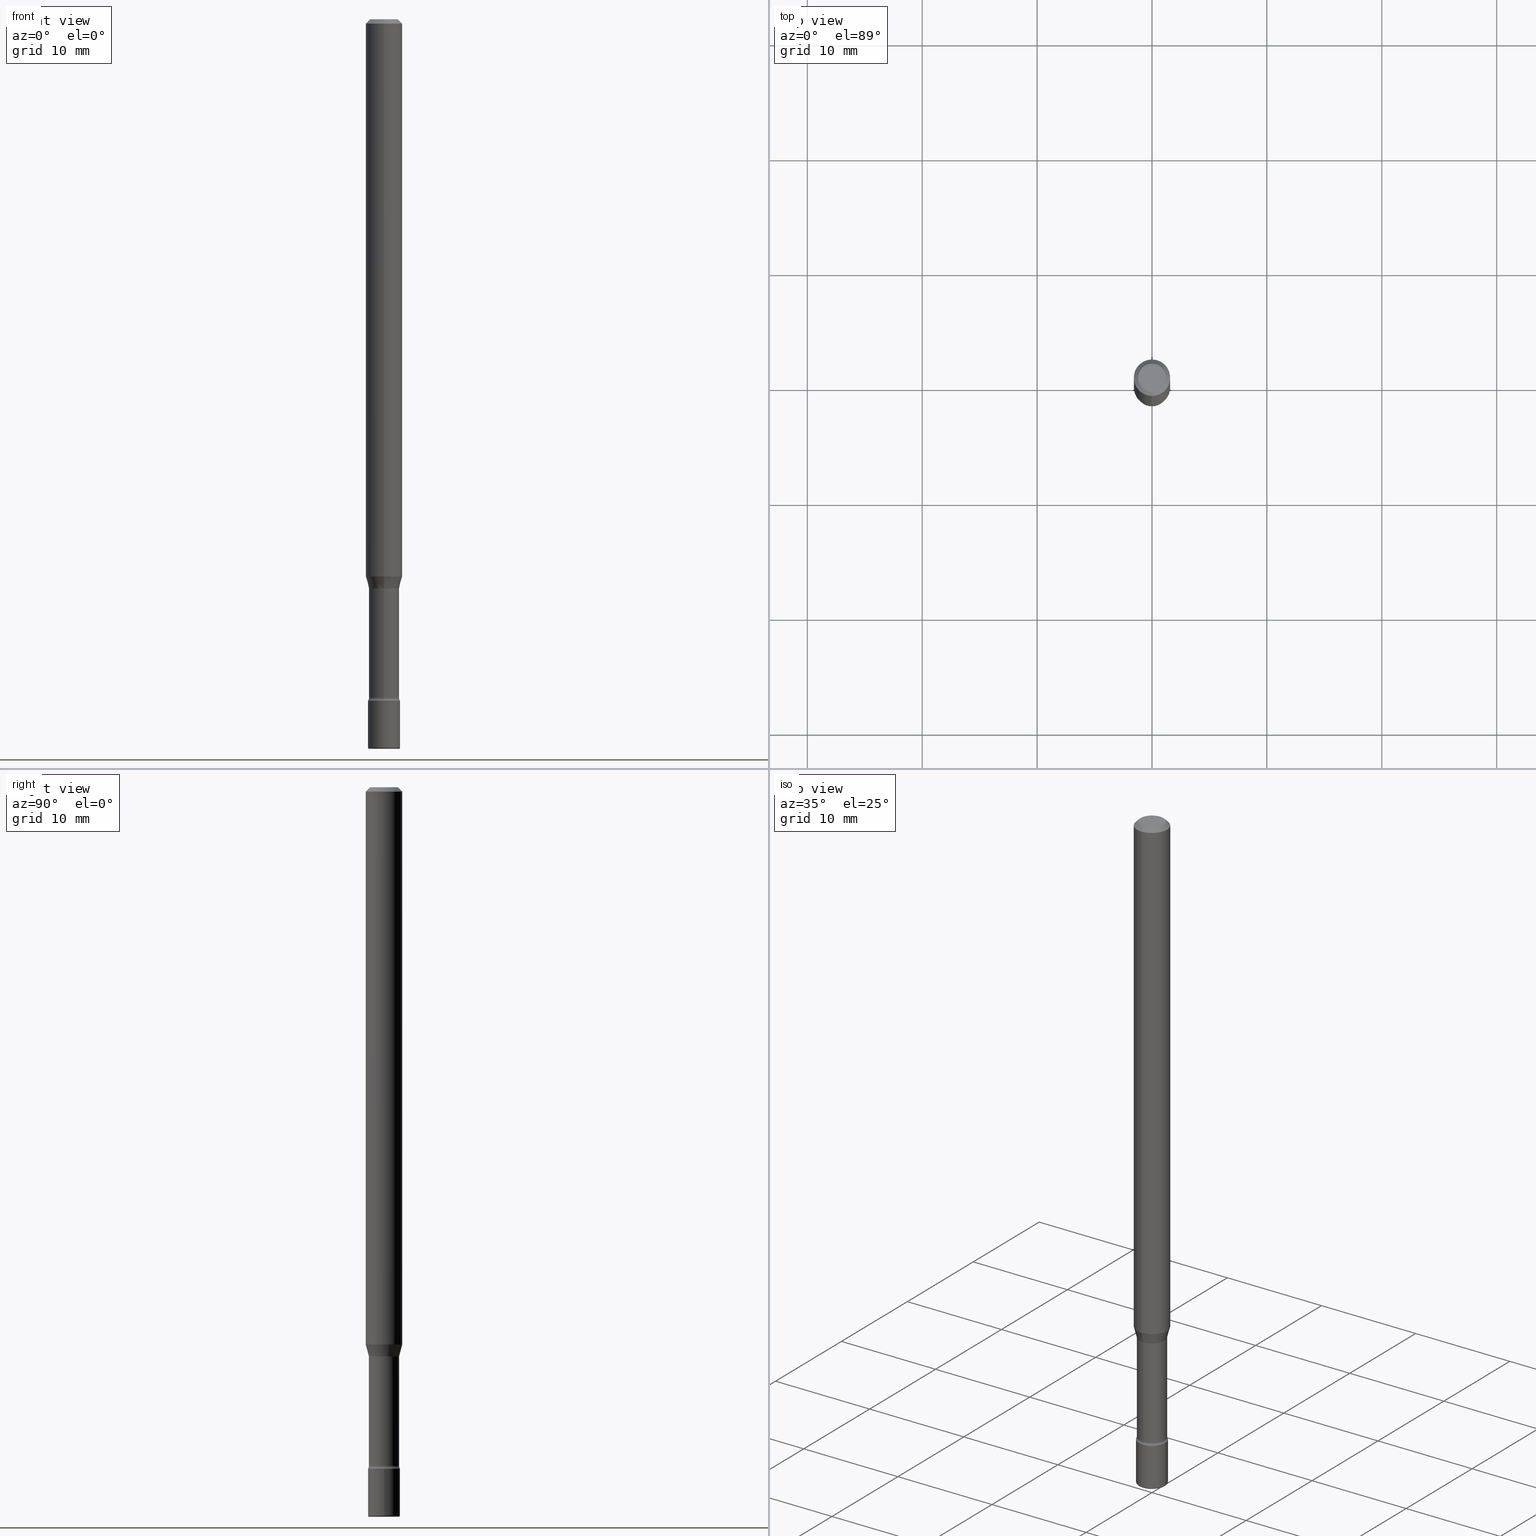
[diagram: canonical four-view strip — front | top / right | iso, engineering-drawing reading convention]
A machine part, canonical four-view strip (front | top / right | iso — engineering-drawing reading convention). The complete STEP part file that produces these views, byte-faithful:
ISO-10303-21;
HEADER;
FILE_DESCRIPTION (( 'STEP AP203' ),
    '1' );
FILE_NAME ('08866.STEP',
    '2024-03-06T20:06:53',
    ( '' ),
    ( '' ),
    'SwSTEP 2.0',
    'SolidWorks 2023',
    '' );
FILE_SCHEMA (( 'CONFIG_CONTROL_DESIGN' ));
ENDSEC;

DATA;
#1 = DIRECTION ( 'NONE',  ( 6.982962677686265922E-15, 1.000000000000000000, -3.483106191921935554E-15 ) ) ;
#2 = ORIENTED_EDGE ( 'NONE', *, *, #260, .F. ) ;
#3 = CLOSED_SHELL ( 'NONE', ( #21, #532, #512, #145, #171, #237, #322, #472, #391, #203, #119, #554, #291, #41 ) ) ;
#4 = CIRCLE ( 'NONE', #540, 0.05169999999999998902 ) ;
#5 = DIRECTION ( 'NONE',  ( -2.445442429917292137E-29, 3.491519111159942797E-15, 1.000000000000000000 ) ) ;
#6 = EDGE_CURVE ( 'NONE', #45, #112, #424, .T. ) ;
#7 = TOROIDAL_SURFACE ( 'NONE', #95, 0.05000000000000000278, 0.004999999999999767651 ) ;
#8 = LINE ( 'NONE', #243, #413 ) ;
#9 = LINE ( 'NONE', #197, #250 ) ;
#10 = CC_DESIGN_DATE_AND_TIME_ASSIGNMENT ( #128, #543, ( #382 ) ) ;
#11 = VERTEX_POINT ( 'NONE', #13 ) ;
#12 = APPLICATION_PROTOCOL_DEFINITION ( 'international standard', 'config_control_design', 1994, #491 ) ;
#13 = CARTESIAN_POINT ( 'NONE',  ( -4.364351673553447815E-16, -0.06250000000000664746, -1.909693851278255972 ) ) ;
#14 = EDGE_CURVE ( 'NONE', #562, #310, #395, .T. ) ;
#15 = APPLICATION_CONTEXT ( 'configuration controlled 3d designs of mechanical parts and assemblies' ) ;
#16 = AXIS2_PLACEMENT_3D ( 'NONE', #461, #452, #414 ) ;
#17 = ORIENTED_EDGE ( 'NONE', *, *, #432, .T. ) ;
#18 = ORIENTED_EDGE ( 'NONE', *, *, #343, .F. ) ;
#19 = AXIS2_PLACEMENT_3D ( 'NONE', #20, #110, #196 ) ;
#20 = CARTESIAN_POINT ( 'NONE',  ( 5.687214798230907854E-29, -8.119835463774270932E-15, -2.325613307291702903 ) ) ;
#21 = ADVANCED_FACE ( 'NONE', ( #383 ), #542, .F. ) ;
#22 = VERTEX_POINT ( 'NONE', #458 ) ;
#23 = AXIS2_PLACEMENT_3D ( 'NONE', #267, #354, #224 ) ;
#24 = DIRECTION ( 'NONE',  ( 1.000000000000000000, -6.982962677686279332E-15, 0.000000000000000000 ) ) ;
#25 = TOROIDAL_SURFACE ( 'NONE', #231, 0.06670000000000005091, 0.01500000000000004975 ) ;
#26 = DIRECTION ( 'NONE',  ( -2.445442429917292137E-29, 3.491519111159942797E-15, 1.000000000000000000 ) ) ;
#27 = ORIENTED_EDGE ( 'NONE', *, *, #37, .T. ) ;
#28 = DIRECTION ( 'NONE',  ( 1.000000000000000000, -6.982962677686279332E-15, 0.000000000000000000 ) ) ;
#29 = EDGE_CURVE ( 'NONE', #335, #22, #230, .T. ) ;
#30 = DIRECTION ( 'NONE',  ( -6.982962677686265133E-15, -1.000000000000000000, 3.491519111159943192E-15 ) ) ;
#31 = DIRECTION ( 'NONE',  ( -2.445442429917292137E-29, 3.491519111159942797E-15, 1.000000000000000000 ) ) ;
#32 = ORIENTED_EDGE ( 'NONE', *, *, #432, .F. ) ;
#33 = DIRECTION ( 'NONE',  ( -6.982962677686266711E-15, -1.000000000000000000, 5.284038672464726492E-15 ) ) ;
#34 = DIRECTION ( 'NONE',  ( 1.000000000000000000, -6.982962677686262766E-15, 0.000000000000000000 ) ) ;
#35 = ORIENTED_EDGE ( 'NONE', *, *, #525, .F. ) ;
#36 = PERSON_AND_ORGANIZATION ( #340, #473 ) ;
#37 = EDGE_CURVE ( 'NONE', #294, #158, #160, .T. ) ;
#38 = DIRECTION ( 'NONE',  ( -6.982962677686266711E-15, -1.000000000000000000, 3.491481338843145583E-15 ) ) ;
#39 = DIRECTION ( 'NONE',  ( -2.445468806185136597E-29, 3.491481338843145583E-15, 1.000000000000000000 ) ) ;
#40 = ORIENTED_EDGE ( 'NONE', *, *, #343, .T. ) ;
#41 = ADVANCED_FACE ( 'NONE', ( #91 ), #302, .F. ) ;
#42 = APPROVAL_PERSON_ORGANIZATION ( #378, #279, #342 ) ;
#43 = FACE_OUTER_BOUND ( 'NONE', #445, .T. ) ;
#44 = FACE_OUTER_BOUND ( 'NONE', #238, .T. ) ;
#45 = VERTEX_POINT ( 'NONE', #329 ) ;
#46 = DIRECTION ( 'NONE',  ( 2.445442429917292137E-29, -3.491519111159942797E-15, -1.000000000000000000 ) ) ;
#47 = CARTESIAN_POINT ( 'NONE',  ( 4.670046372068011457E-29, -6.667732578202665138E-15, -1.909693851278256194 ) ) ;
#48 = ORIENTED_EDGE ( 'NONE', *, *, #390, .T. ) ;
#49 = CIRCLE ( 'NONE', #139, 0.05500000000000000028 ) ;
#50 = DIRECTION ( 'NONE',  ( 7.105427357601001859E-15, 1.000000000000000000, -3.491481338843145583E-15 ) ) ;
#51 = DIRECTION ( 'NONE',  ( -2.445468806185136597E-29, 3.491481338843145583E-15, 1.000000000000000000 ) ) ;
#52 = DIRECTION ( 'NONE',  ( -1.807323732225328562E-15, -0.2588190451025179639, 0.9659258262890690894 ) ) ;
#53 = EDGE_LOOP ( 'NONE', ( #508, #407, #490, #66 ) ) ;
#54 = CYLINDRICAL_SURFACE ( 'NONE', #249, 0.06250000000000000000 ) ;
#55 = AXIS2_PLACEMENT_3D ( 'NONE', #401, #362, #406 ) ;
#56 = MECHANICAL_CONTEXT ( 'NONE', #15, 'mechanical' ) ;
#57 = AXIS2_PLACEMENT_3D ( 'NONE', #131, #330, #256 ) ;
#58 = ADVANCED_FACE ( 'NONE', ( #43 ), #412, .T. ) ;
#59 = DIRECTION ( 'NONE',  ( 2.438088387897960049E-29, -3.491481338843145188E-15, -1.000000000000000000 ) ) ;
#60 =( GEOMETRIC_REPRESENTATION_CONTEXT ( 3 ) GLOBAL_UNCERTAINTY_ASSIGNED_CONTEXT ( ( #227 ) ) GLOBAL_UNIT_ASSIGNED_CONTEXT ( ( #356, #446, #149 ) ) REPRESENTATION_CONTEXT ( 'NONE', 'WORKASPACE' ) );
#61 = DIRECTION ( 'NONE',  ( 4.937700262164546464E-15, 0.7071067811865449082, -0.7071067811865501263 ) ) ;
#62 = ORIENTED_EDGE ( 'NONE', *, *, #260, .T. ) ;
#63 = FACE_OUTER_BOUND ( 'NONE', #220, .T. ) ;
#64 = DIRECTION ( 'NONE',  ( -6.982962677686265922E-15, -1.000000000000000000, 3.491519111159943586E-15 ) ) ;
#65 = ADVANCED_FACE ( 'NONE', ( #492 ), #7, .T. ) ;
#66 = ORIENTED_EDGE ( 'NONE', *, *, #29, .F. ) ;
#67 = APPLICATION_PROTOCOL_DEFINITION ( 'international standard', 'config_control_design', 1994, #15 ) ;
#68 = AXIS2_PLACEMENT_3D ( 'NONE', #533, #155, #400 ) ;
#69 = CARTESIAN_POINT ( 'NONE',  ( -1.169113584055446105E-44, 1.669184350826100908E-30, 4.780733988912460139E-16 ) ) ;
#70 = AXIS2_PLACEMENT_3D ( 'NONE', #111, #236, #523 ) ;
#71 = ORIENTED_EDGE ( 'NONE', *, *, #84, .F. ) ;
#72 = CC_DESIGN_APPROVAL ( #482, ( #488 ) ) ;
#73 = CYLINDRICAL_SURFACE ( 'NONE', #530, 0.05169999999999998902 ) ;
#74 = COORDINATED_UNIVERSAL_TIME_OFFSET ( 5, 0, .BEHIND. ) ;
#75 = CARTESIAN_POINT ( 'NONE',  ( 6.622805039559550466E-46, -9.459420831309330133E-32, -2.708739301209159367E-17 ) ) ;
#76 = DIRECTION ( 'NONE',  ( -2.445442429917292137E-29, 3.491519111159942797E-15, 1.000000000000000000 ) ) ;
#77 = ORIENTED_EDGE ( 'NONE', *, *, #409, .F. ) ;
#78 = CONICAL_SURFACE ( 'NONE', #102, 0.06250000000000000000, 0.7853981633974480570 ) ;
#79 = CARTESIAN_POINT ( 'NONE',  ( -3.645882506857789159E-16, -0.05221111260567078832, -1.948092501787272779 ) ) ;
#80 = ORIENTED_EDGE ( 'NONE', *, *, #314, .F. ) ;
#81 = COORDINATED_UNIVERSAL_TIME_OFFSET ( 5, 0, .BEHIND. ) ;
#82 = CARTESIAN_POINT ( 'NONE',  ( 5.710108073856877243E-29, -8.152697124558466516E-15, -2.334999999999999964 ) ) ;
#83 = DIRECTION ( 'NONE',  ( -6.982962677686265922E-15, -1.000000000000000000, 3.491519111159943586E-15 ) ) ;
#84 = EDGE_CURVE ( 'NONE', #134, #11, #367, .T. ) ;
#85 = ORIENTED_EDGE ( 'NONE', *, *, #316, .T. ) ;
#86 = FACE_OUTER_BOUND ( 'NONE', #484, .T. ) ;
#87 = DIRECTION ( 'NONE',  ( 2.445442429917292137E-29, -3.491519111159942797E-15, -1.000000000000000000 ) ) ;
#88 = EDGE_CURVE ( 'NONE', #341, #562, #350, .T. ) ;
#89 = ORIENTED_EDGE ( 'NONE', *, *, #485, .T. ) ;
#90 = CARTESIAN_POINT ( 'NONE',  ( -0.05500000000000000028, 3.907985046680551042E-16, -2.705414299640198362E-30 ) ) ;
#91 = FACE_OUTER_BOUND ( 'NONE', #499, .T. ) ;
#92 = LINE ( 'NONE', #221, #556 ) ;
#93 = AXIS2_PLACEMENT_3D ( 'NONE', #505, #448, #457 ) ;
#94 = VERTEX_POINT ( 'NONE', #389 ) ;
#95 = AXIS2_PLACEMENT_3D ( 'NONE', #106, #51, #226 ) ;
#96 = ORIENTED_EDGE ( 'NONE', *, *, #371, .F. ) ;
#97 = CARTESIAN_POINT ( 'NONE',  ( 3.907985046681124445E-16, 0.05499999999999189565, -2.335000000000000409 ) ) ;
#98 = DIRECTION ( 'NONE',  ( -2.445468806185136597E-29, 3.491481338843145583E-15, 1.000000000000000000 ) ) ;
#99 = ORIENTED_EDGE ( 'NONE', *, *, #6, .T. ) ;
#100 = EDGE_CURVE ( 'NONE', #112, #45, #465, .T. ) ;
#101 = DIRECTION ( 'NONE',  ( -6.982962677686265922E-15, -1.000000000000000000, 4.370956789862821150E-15 ) ) ;
#102 = AXIS2_PLACEMENT_3D ( 'NONE', #552, #87, #212 ) ;
#103 = DIRECTION ( 'NONE',  ( -2.445468806185136877E-29, 3.491481338843145188E-15, 1.000000000000000000 ) ) ;
#104 = CARTESIAN_POINT ( 'NONE',  ( -1.169113584055446105E-44, 1.669184350826100908E-30, 4.780733988912460139E-16 ) ) ;
#105 = FACE_OUTER_BOUND ( 'NONE', #140, .T. ) ;
#106 = CARTESIAN_POINT ( 'NONE',  ( 6.101444671431915719E-29, -8.711245940413648329E-15, -2.495000000000000107 ) ) ;
#107 = AXIS2_PLACEMENT_3D ( 'NONE', #157, #318, #486 ) ;
#108 = DIRECTION ( 'NONE',  ( -2.445442429917292137E-29, 3.491519111159943192E-15, 1.000000000000000000 ) ) ;
#109 = ORIENTED_EDGE ( 'NONE', *, *, #191, .F. ) ;
#110 = DIRECTION ( 'NONE',  ( -2.445442429917292137E-29, 3.491519111159942797E-15, 1.000000000000000000 ) ) ;
#111 = CARTESIAN_POINT ( 'NONE',  ( 5.710169662442294357E-29, -8.152608926198745099E-15, -2.334999999999999964 ) ) ;
#112 = VERTEX_POINT ( 'NONE', #429 ) ;
#113 = DIRECTION ( 'NONE',  ( -6.982962677686266711E-15, -1.000000000000000000, 3.491519111159944375E-15 ) ) ;
#114 = CONICAL_SURFACE ( 'NONE', #437, 0.06250000000000000000, 0.7853981633974480570 ) ;
#115 = VECTOR ( 'NONE', #430, 39.37007874015748143 ) ;
#116 = LOCAL_TIME ( 15, 6, 53.00000000000000000, #504 ) ;
#117 = ORIENTED_EDGE ( 'NONE', *, *, #442, .T. ) ;
#118 = PERSON_AND_ORGANIZATION ( #340, #473 ) ;
#119 = ADVANCED_FACE ( 'NONE', ( #184 ), #144, .F. ) ;
#120 = APPROVAL_DATE_TIME ( #178, #482 ) ;
#121 = DIRECTION ( 'NONE',  ( -6.982962677686265133E-15, -1.000000000000000000, 3.491519111159942797E-15 ) ) ;
#122 = LINE ( 'NONE', #374, #439 ) ;
#123 = EDGE_LOOP ( 'NONE', ( #449, #513, #77, #166 ) ) ;
#124 = EDGE_CURVE ( 'NONE', #156, #341, #519, .T. ) ;
#125 = AXIS2_PLACEMENT_3D ( 'NONE', #501, #248, #130 ) ;
#126 = CYLINDRICAL_SURFACE ( 'NONE', #16, 0.05500000000000000028 ) ;
#127 = ORIENTED_EDGE ( 'NONE', *, *, #316, .F. ) ;
#128 = DATE_AND_TIME ( #408, #141 ) ;
#129 = EDGE_CURVE ( 'NONE', #422, #11, #518, .T. ) ;
#130 = DIRECTION ( 'NONE',  ( -6.982962677686268288E-15, -1.000000000000000000, 0.000000000000000000 ) ) ;
#131 = CARTESIAN_POINT ( 'NONE',  ( 0.000000000000000000, 0.000000000000000000, 0.000000000000000000 ) ) ;
#132 = EDGE_LOOP ( 'NONE', ( #109, #80, #404, #27 ) ) ;
#133 = LINE ( 'NONE', #466, #218 ) ;
#134 = VERTEX_POINT ( 'NONE', #135 ) ;
#135 = CARTESIAN_POINT ( 'NONE',  ( 4.440892098501093562E-16, 0.06249999999999334560, -1.909693851278256416 ) ) ;
#136 = AXIS2_PLACEMENT_3D ( 'NONE', #427, #175, #255 ) ;
#137 = DIRECTION ( 'NONE',  ( -2.445442429917292137E-29, 3.491519111159943192E-15, 1.000000000000000000 ) ) ;
#138 = MANIFOLD_SOLID_BREP ( 'Body-Move/Copy2[1]', #306 ) ;
#139 = AXIS2_PLACEMENT_3D ( 'NONE', #174, #296, #28 ) ;
#140 = EDGE_LOOP ( 'NONE', ( #388, #566 ) ) ;
#141 = LOCAL_TIME ( 15, 6, 53.00000000000000000, #558 ) ;
#142 = DIRECTION ( 'NONE',  ( -2.445442429917292137E-29, 3.491519111159942797E-15, 1.000000000000000000 ) ) ;
#143 = CC_DESIGN_PERSON_AND_ORGANIZATION_ASSIGNMENT ( #235, #399, ( #423 ) ) ;
#144 = PLANE ( 'NONE',  #311 ) ;
#145 = ADVANCED_FACE ( 'NONE', ( #392 ), #114, .T. ) ;
#146 = AXIS2_PLACEMENT_3D ( 'NONE', #82, #76, #164 ) ;
#147 = PRODUCT_RELATED_PRODUCT_CATEGORY ( 'detail', '', ( #423 ) ) ;
#148 = DIRECTION ( 'NONE',  ( -2.445442429917292137E-29, 3.491519111159942797E-15, 1.000000000000000000 ) ) ;
#149 =( NAMED_UNIT ( * ) SI_UNIT ( $, .STERADIAN. ) SOLID_ANGLE_UNIT ( ) );
#150 = CARTESIAN_POINT ( 'NONE',  ( 6.101444671431915719E-29, -8.711245940413648329E-15, -2.495000000000000107 ) ) ;
#151 = CARTESIAN_POINT ( 'NONE',  ( 5.710169662442294357E-29, -8.152608926198745099E-15, -2.334999999999999964 ) ) ;
#152 = AXIS2_PLACEMENT_3D ( 'NONE', #209, #180, #292 ) ;
#153 = DIRECTION ( 'NONE',  ( -2.445468806185136597E-29, 3.491481338843145583E-15, 1.000000000000000000 ) ) ;
#154 = CARTESIAN_POINT ( 'NONE',  ( 3.709822678791189595E-16, 0.05221111260565718115, -1.948092501787273445 ) ) ;
#155 = DIRECTION ( 'NONE',  ( -2.445442429917292137E-29, 3.491519111159942797E-15, 1.000000000000000000 ) ) ;
#156 = VERTEX_POINT ( 'NONE', #192 ) ;
#157 = CARTESIAN_POINT ( 'NONE',  ( 4.763948061274326162E-29, -6.801802200297648070E-15, -1.948092501787273001 ) ) ;
#158 = VERTEX_POINT ( 'NONE', #97 ) ;
#159 = DATE_AND_TIME ( #538, #426 ) ;
#160 = CIRCLE ( 'NONE', #146, 0.05500000000000000028 ) ;
#161 = VECTOR ( 'NONE', #103, 39.37007874015748143 ) ;
#162 = EDGE_CURVE ( 'NONE', #419, #368, #477, .T. ) ;
#163 = CARTESIAN_POINT ( 'NONE',  ( -0.05499999999999988926, -8.320447435745593669E-15, -2.495000000000000107 ) ) ;
#164 = DIRECTION ( 'NONE',  ( -6.982962677686266711E-15, -1.000000000000000000, 4.966996352116842287E-15 ) ) ;
#165 = CARTESIAN_POINT ( 'NONE',  ( -3.610191704363799049E-16, -0.05169999999999998902, 6.585849369382151154E-16 ) ) ;
#166 = ORIENTED_EDGE ( 'NONE', *, *, #418, .F. ) ;
#167 = PERSON_AND_ORGANIZATION_ROLE ( 'creator' ) ;
#168 = CARTESIAN_POINT ( 'NONE',  ( -4.657636106016261894E-16, -0.06670000000000680940, -1.951974787463810701 ) ) ;
#169 = VERTEX_POINT ( 'NONE', #567 ) ;
#170 = DATE_AND_TIME ( #253, #326 ) ;
#171 = ADVANCED_FACE ( 'NONE', ( #436 ), #54, .T. ) ;
#172 = PRODUCT_DEFINITION_SHAPE ( 'NONE', 'NONE',  #488 ) ;
#173 = CIRCLE ( 'NONE', #453, 0.05500000000000000028 ) ;
#174 = CARTESIAN_POINT ( 'NONE',  ( 6.101444671431915719E-29, -8.711245940413648329E-15, -2.495000000000000107 ) ) ;
#175 = DIRECTION ( 'NONE',  ( -2.445442429917292137E-29, 3.491519111159942797E-15, 1.000000000000000000 ) ) ;
#176 = DIRECTION ( 'NONE',  ( -6.982962677686267499E-15, -1.000000000000000000, 0.000000000000000000 ) ) ;
#177 = ORIENTED_EDGE ( 'NONE', *, *, #14, .F. ) ;
#178 = DATE_AND_TIME ( #210, #116 ) ;
#179 = EDGE_LOOP ( 'NONE', ( #2, #277, #415, #529 ) ) ;
#180 = DIRECTION ( 'NONE',  ( -2.445442429917292137E-29, 3.491519111159942797E-15, 1.000000000000000000 ) ) ;
#181 = DIRECTION ( 'NONE',  ( 1.000000000000000000, -6.982962677686075017E-15, 0.000000000000000000 ) ) ;
#182 = CYLINDRICAL_SURFACE ( 'NONE', #487, 0.06250000000000000000 ) ;
#183 = EDGE_LOOP ( 'NONE', ( #359, #462, #257, #456 ) ) ;
#184 = FACE_OUTER_BOUND ( 'NONE', #327, .T. ) ;
#185 = LINE ( 'NONE', #347, #115 ) ;
#186 = ORIENTED_EDGE ( 'NONE', *, *, #37, .F. ) ;
#187 = AXIS2_PLACEMENT_3D ( 'NONE', #357, #475, #438 ) ;
#188 = ADVANCED_FACE ( 'NONE', ( #244 ), #483, .T. ) ;
#189 = ORIENTED_EDGE ( 'NONE', *, *, #199, .F. ) ;
#190 = DIRECTION ( 'NONE',  ( -1.000000000000000000, 7.105427357601061812E-15, 0.000000000000000000 ) ) ;
#191 = EDGE_CURVE ( 'NONE', #169, #158, #353, .T. ) ;
#192 = CARTESIAN_POINT ( 'NONE',  ( -0.05000000000000000278, -8.346939707486704101E-15, -2.499999999999999556 ) ) ;
#193 = CIRCLE ( 'NONE', #262, 0.06250000000000000000 ) ;
#194 = AXIS2_PLACEMENT_3D ( 'NONE', #151, #153, #451 ) ;
#195 = DIRECTION ( 'NONE',  ( 7.105427357601001859E-15, 1.000000000000000000, 0.000000000000000000 ) ) ;
#196 = DIRECTION ( 'NONE',  ( -6.982962677686265133E-15, -1.000000000000000000, 3.491519111159942403E-15 ) ) ;
#197 = CARTESIAN_POINT ( 'NONE',  ( 3.673505943879716688E-16, 0.05169999999999998902, 2.975618608442770603E-16 ) ) ;
#198 = CARTESIAN_POINT ( 'NONE',  ( 3.840629472727447874E-16, 0.04750000000000000749, -1.929345507921888929E-16 ) ) ;
#199 = EDGE_CURVE ( 'NONE', #222, #307, #381, .T. ) ;
#200 = CIRCLE ( 'NONE', #361, 0.04750000000000000749 ) ;
#201 = DIRECTION ( 'NONE',  ( 2.445442429917291576E-29, -3.491519111159943192E-15, -1.000000000000000000 ) ) ;
#202 = FACE_OUTER_BOUND ( 'NONE', #183, .T. ) ;
#203 = ADVANCED_FACE ( 'NONE', ( #278 ), #522, .F. ) ;
#204 = DIRECTION ( 'NONE',  ( -2.445442429917292137E-29, 3.491519111159942797E-15, 1.000000000000000000 ) ) ;
#205 = ORIENTED_EDGE ( 'NONE', *, *, #129, .T. ) ;
#206 = DATE_AND_TIME ( #500, #370 ) ;
#207 = AXIS2_PLACEMENT_3D ( 'NONE', #496, #564, #545 ) ;
#208 = AXIS2_PLACEMENT_3D ( 'NONE', #297, #275, #324 ) ;
#209 = CARTESIAN_POINT ( 'NONE',  ( -1.169113584055446105E-44, 1.669184350826100908E-30, 4.780733988912460139E-16 ) ) ;
#210 = CALENDAR_DATE ( 2024, 6, 3 ) ;
#211 = CARTESIAN_POINT ( 'NONE',  ( 0.05000000000000000278, -9.060394074297961665E-15, -2.495000000000000107 ) ) ;
#212 = DIRECTION ( 'NONE',  ( 6.982962677686265922E-15, 1.000000000000000000, -3.483106191921935554E-15 ) ) ;
#213 = ORIENTED_EDGE ( 'NONE', *, *, #266, .F. ) ;
#214 = APPROVAL_DATE_TIME ( #170, #563 ) ;
#215 = FACE_OUTER_BOUND ( 'NONE', #460, .T. ) ;
#216 = ORIENTED_EDGE ( 'NONE', *, *, #517, .F. ) ;
#217 = PERSON_AND_ORGANIZATION_ROLE ( 'creator' ) ;
#218 = VECTOR ( 'NONE', #387, 39.37007874015748143 ) ;
#219 = FACE_OUTER_BOUND ( 'NONE', #325, .T. ) ;
#220 = EDGE_LOOP ( 'NONE', ( #284, #269, #441, #346 ) ) ;
#221 = CARTESIAN_POINT ( 'NONE',  ( 0.05500000000000000028, -3.840629472727446888E-16, 2.681897226687764826E-30 ) ) ;
#222 = VERTEX_POINT ( 'NONE', #198 ) ;
#223 = CC_DESIGN_PERSON_AND_ORGANIZATION_ASSIGNMENT ( #247, #167, ( #488 ) ) ;
#224 = DIRECTION ( 'NONE',  ( -6.982962677686266711E-15, -1.000000000000000000, 5.284038672464726492E-15 ) ) ;
#225 = CARTESIAN_POINT ( 'NONE',  ( -1.169113584055446105E-44, 1.669184350826100908E-30, 4.780733988912460139E-16 ) ) ;
#226 = DIRECTION ( 'NONE',  ( 1.000000000000000000, -6.982962677686273810E-15, 4.883557194083115143E-29 ) ) ;
#227 = UNCERTAINTY_MEASURE_WITH_UNIT (LENGTH_MEASURE( 1.000000000000000082E-05 ), #356, 'distance_accuracy_value', 'NONE');
#228 = ADVANCED_FACE ( 'NONE', ( #105 ), #396, .T. ) ;
#229 = DIRECTION ( 'NONE',  ( 1.000000000000000000, -7.105427357601001070E-15, 4.926315971119550959E-29 ) ) ;
#230 = CIRCLE ( 'NONE', #569, 0.004999999999999767651 ) ;
#231 = AXIS2_PLACEMENT_3D ( 'NONE', #459, #384, #506 ) ;
#232 = CARTESIAN_POINT ( 'NONE',  ( 0.000000000000000000, 0.000000000000000000, 0.000000000000000000 ) ) ;
#233 = AXIS2_PLACEMENT_3D ( 'NONE', #270, #50, #190 ) ;
#234 = AXIS2_PLACEMENT_3D ( 'NONE', #232, #476, #398 ) ;
#235 = PERSON_AND_ORGANIZATION ( #340, #473 ) ;
#236 = DIRECTION ( 'NONE',  ( -2.438088387897960049E-29, 3.491481338843145188E-15, 1.000000000000000000 ) ) ;
#237 = ADVANCED_FACE ( 'NONE', ( #202 ), #433, .T. ) ;
#238 = EDGE_LOOP ( 'NONE', ( #280, #447, #428, #177 ) ) ;
#239 = DIRECTION ( 'NONE',  ( 1.839019923739598738E-15, 0.2588190451025247363, 0.9659258262890673130 ) ) ;
#240 = CARTESIAN_POINT ( 'NONE',  ( 4.739320047520439837E-16, 0.06669999999999193241, -2.325613307291702903 ) ) ;
#241 = EDGE_CURVE ( 'NONE', #368, #419, #479, .T. ) ;
#242 = AXIS2_PLACEMENT_3D ( 'NONE', #305, #31, #299 ) ;
#243 = CARTESIAN_POINT ( 'NONE',  ( 4.364351673553919652E-16, 0.06249999999999995143, -0.01500000000000024578 ) ) ;
#244 = FACE_OUTER_BOUND ( 'NONE', #524, .T. ) ;
#245 = CC_DESIGN_PERSON_AND_ORGANIZATION_ASSIGNMENT ( #289, #450, ( #382 ) ) ;
#246 = ORIENTED_EDGE ( 'NONE', *, *, #6, .F. ) ;
#247 = PERSON_AND_ORGANIZATION ( #340, #473 ) ;
#248 = DIRECTION ( 'NONE',  ( -1.000000000000000000, 6.982962677686265922E-15, -4.883557194083112340E-29 ) ) ;
#249 = AXIS2_PLACEMENT_3D ( 'NONE', #69, #360, #64 ) ;
#250 = VECTOR ( 'NONE', #108, 39.37007874015748143 ) ;
#251 = DIRECTION ( 'NONE',  ( -2.445442429917292137E-29, 3.491519111159942797E-15, 1.000000000000000000 ) ) ;
#252 = ORIENTED_EDGE ( 'NONE', *, *, #124, .F. ) ;
#253 = CALENDAR_DATE ( 2024, 6, 3 ) ;
#254 = DIRECTION ( 'NONE',  ( -2.445442429917292137E-29, 3.491519111159942797E-15, 1.000000000000000000 ) ) ;
#255 = DIRECTION ( 'NONE',  ( -6.982962677686265133E-15, -1.000000000000000000, 3.491519111159943192E-15 ) ) ;
#256 = DIRECTION ( 'NONE',  ( 1.000000000000000000, -6.982962677686266711E-15, 4.876176775795935793E-29 ) ) ;
#257 = ORIENTED_EDGE ( 'NONE', *, *, #485, .F. ) ;
#258 = DIRECTION ( 'NONE',  ( -2.445442429917292137E-29, 3.491519111159943192E-15, 1.000000000000000000 ) ) ;
#259 = EDGE_LOOP ( 'NONE', ( #96, #40, #557, #431 ) ) ;
#260 = EDGE_CURVE ( 'NONE', #169, #288, #4, .T. ) ;
#261 = AXIS2_PLACEMENT_3D ( 'NONE', #240, #229, #195 ) ;
#262 = AXIS2_PLACEMENT_3D ( 'NONE', #47, #251, #455 ) ;
#263 = FACE_OUTER_BOUND ( 'NONE', #320, .T. ) ;
#264 = ORIENTED_EDGE ( 'NONE', *, *, #394, .T. ) ;
#265 = PRODUCT_DEFINITION_FORMATION_WITH_SPECIFIED_SOURCE ( 'ANY', '', #423, .NOT_KNOWN. ) ;
#266 = EDGE_CURVE ( 'NONE', #169, #368, #9, .T. ) ;
#267 = CARTESIAN_POINT ( 'NONE',  ( 4.773441967392791886E-29, -6.815357274932263739E-15, -1.951974787463810923 ) ) ;
#268 = CARTESIAN_POINT ( 'NONE',  ( 3.673505943880287133E-16, 0.05169999999999318890, -1.951974787463811367 ) ) ;
#269 = ORIENTED_EDGE ( 'NONE', *, *, #266, .T. ) ;
#270 = CARTESIAN_POINT ( 'NONE',  ( -0.05000000000000000278, -8.355974572533597921E-15, -2.495000000000000107 ) ) ;
#271 = AXIS2_PLACEMENT_3D ( 'NONE', #168, #293, #176 ) ;
#272 = EDGE_CURVE ( 'NONE', #22, #341, #173, .T. ) ;
#273 = CARTESIAN_POINT ( 'NONE',  ( 4.670046372068011457E-29, -6.667732578202665138E-15, -1.909693851278256194 ) ) ;
#274 = VECTOR ( 'NONE', #137, 39.37007874015748143 ) ;
#275 = DIRECTION ( 'NONE',  ( -2.445442429917292137E-29, 3.491519111159942797E-15, 1.000000000000000000 ) ) ;
#276 = EDGE_CURVE ( 'NONE', #341, #22, #49, .T. ) ;
#277 = ORIENTED_EDGE ( 'NONE', *, *, #191, .T. ) ;
#278 = FACE_OUTER_BOUND ( 'NONE', #467, .T. ) ;
#279 = APPROVAL ( #286, 'UNSPECIFIED' ) ;
#280 = ORIENTED_EDGE ( 'NONE', *, *, #88, .F. ) ;
#281 = VECTOR ( 'NONE', #52, 39.37007874015748854 ) ;
#282 = AXIS2_PLACEMENT_3D ( 'NONE', #313, #5, #319 ) ;
#283 = FACE_OUTER_BOUND ( 'NONE', #132, .T. ) ;
#284 = ORIENTED_EDGE ( 'NONE', *, *, #314, .T. ) ;
#285 = SECURITY_CLASSIFICATION_LEVEL ( 'unclassified' ) ;
#286 = APPROVAL_STATUS ( 'not_yet_approved' ) ;
#287 = LINE ( 'NONE', #165, #274 ) ;
#288 = VERTEX_POINT ( 'NONE', #495 ) ;
#289 = PERSON_AND_ORGANIZATION ( #340, #473 ) ;
#290 = CIRCLE ( 'NONE', #498, 0.05000000000000000278 ) ;
#291 = ADVANCED_FACE ( 'NONE', ( #86 ), #539, .T. ) ;
#292 = DIRECTION ( 'NONE',  ( -6.982962677686266711E-15, -1.000000000000000000, 3.491519111159944375E-15 ) ) ;
#293 = DIRECTION ( 'NONE',  ( -1.000000000000000000, 6.982962677686265922E-15, -4.883557194083112340E-29 ) ) ;
#294 = VERTEX_POINT ( 'NONE', #373 ) ;
#295 = APPROVAL_DATE_TIME ( #159, #279 ) ;
#296 = DIRECTION ( 'NONE',  ( -2.445468806185136597E-29, 3.491481338843145583E-15, 1.000000000000000000 ) ) ;
#297 = CARTESIAN_POINT ( 'NONE',  ( 5.710108073856877243E-29, -8.152697124558466516E-15, -2.334999999999999964 ) ) ;
#298 = ORIENTED_EDGE ( 'NONE', *, *, #468, .F. ) ;
#299 = DIRECTION ( 'NONE',  ( -6.982962677686265922E-15, -1.000000000000000000, 5.232311393739396883E-15 ) ) ;
#300 = CC_DESIGN_DATE_AND_TIME_ASSIGNMENT ( #206, #328, ( #488 ) ) ;
#301 = ORIENTED_EDGE ( 'NONE', *, *, #547, .F. ) ;
#302 = TOROIDAL_SURFACE ( 'NONE', #136, 0.06669999999999999540, 0.01500000000000002373 ) ;
#303 = CIRCLE ( 'NONE', #125, 0.01500000000000004455 ) ;
#304 = DIRECTION ( 'NONE',  ( -2.445442429917291576E-29, 3.491519111159943192E-15, 1.000000000000000000 ) ) ;
#305 = CARTESIAN_POINT ( 'NONE',  ( 4.763948061274326162E-29, -6.801802200297648070E-15, -1.948092501787273001 ) ) ;
#306 = CLOSED_SHELL ( 'NONE', ( #507, #65, #188, #228, #58, #380 ) ) ;
#307 = VERTEX_POINT ( 'NONE', #338 ) ;
#308 = TOROIDAL_SURFACE ( 'NONE', #19, 0.06670000000000005091, 0.01500000000000004975 ) ;
#309 = CIRCLE ( 'NONE', #271, 0.01500000000000002720 ) ;
#310 = VERTEX_POINT ( 'NONE', #344 ) ;
#311 = AXIS2_PLACEMENT_3D ( 'NONE', #352, #304, #469 ) ;
#312 = CC_DESIGN_SECURITY_CLASSIFICATION ( #382, ( #265 ) ) ;
#313 = CARTESIAN_POINT ( 'NONE',  ( 4.763948061274326162E-29, -6.801802200297648070E-15, -1.948092501787273001 ) ) ;
#314 = EDGE_CURVE ( 'NONE', #288, #169, #527, .T. ) ;
#315 = MANIFOLD_SOLID_BREP ( 'Body-Move/Copy2[2]', #3 ) ;
#316 = EDGE_CURVE ( 'NONE', #307, #222, #200, .T. ) ;
#317 = DIRECTION ( 'NONE',  ( -6.982962677686266711E-15, -1.000000000000000000, 5.284038672464726492E-15 ) ) ;
#318 = DIRECTION ( 'NONE',  ( -2.445442429917292137E-29, 3.491519111159942797E-15, 1.000000000000000000 ) ) ;
#319 = DIRECTION ( 'NONE',  ( -6.982962677686265922E-15, -1.000000000000000000, 5.232311393739396883E-15 ) ) ;
#320 = EDGE_LOOP ( 'NONE', ( #32, #189, #454, #99 ) ) ;
#321 = DIRECTION ( 'NONE',  ( -2.445442429917292137E-29, 3.491519111159942797E-15, 1.000000000000000000 ) ) ;
#322 = ADVANCED_FACE ( 'NONE', ( #215 ), #355, .T. ) ;
#323 = ORIENTED_EDGE ( 'NONE', *, *, #560, .F. ) ;
#324 = DIRECTION ( 'NONE',  ( -6.982962677686266711E-15, -1.000000000000000000, 4.966996352116842287E-15 ) ) ;
#325 = EDGE_LOOP ( 'NONE', ( #363, #553, #348, #246 ) ) ;
#326 = LOCAL_TIME ( 15, 6, 53.00000000000000000, #81 ) ;
#327 = EDGE_LOOP ( 'NONE', ( #186, #216 ) ) ;
#328 = DATE_TIME_ROLE ( 'creation_date' ) ;
#329 = CARTESIAN_POINT ( 'NONE',  ( 4.440892098501096520E-16, 0.06249999999999995837, -0.01500000000000024578 ) ) ;
#330 = DIRECTION ( 'NONE',  ( -2.445468806185136597E-29, 3.491481338843145583E-15, 1.000000000000000000 ) ) ;
#331 = ORIENTED_EDGE ( 'NONE', *, *, #371, .T. ) ;
#332 = EDGE_CURVE ( 'NONE', #288, #294, #303, .T. ) ;
#333 = APPROVAL_ROLE ( '' ) ;
#334 = CARTESIAN_POINT ( 'NONE',  ( -3.610191704363322281E-16, -0.05170000000000680995, -1.951974787463810701 ) ) ;
#335 = VERTEX_POINT ( 'NONE', #410 ) ;
#336 = SHAPE_DEFINITION_REPRESENTATION ( #172, #572 ) ;
#337 = CIRCLE ( 'NONE', #403, 0.05500000000000000028 ) ;
#338 = CARTESIAN_POINT ( 'NONE',  ( -3.773273898774340269E-16, -0.04750000000000000749, 1.387597647680057241E-16 ) ) ;
#339 = DIRECTION ( 'NONE',  ( -2.445468806185136877E-29, 3.491481338843145188E-15, 1.000000000000000000 ) ) ;
#340 = PERSON ( 'UNSPECIFIED', 'UNSPECIFIED', 'UNSPECIFIED', ('UNSPECIFIED'), ('UNSPECIFIED'), ('UNSPECIFIED') ) ;
#341 = VERTEX_POINT ( 'NONE', #163 ) ;
#342 = APPROVAL_ROLE ( '' ) ;
#343 = EDGE_CURVE ( 'NONE', #94, #368, #444, .T. ) ;
#344 = CARTESIAN_POINT ( 'NONE',  ( 0.05500000000000000028, -8.536671873471490084E-15, -2.334999999999999964 ) ) ;
#345 = FACE_OUTER_BOUND ( 'NONE', #123, .T. ) ;
#346 = ORIENTED_EDGE ( 'NONE', *, *, #394, .F. ) ;
#347 = CARTESIAN_POINT ( 'NONE',  ( -4.364351673553916201E-16, -0.06250000000000000000, 6.962933433387425620E-16 ) ) ;
#348 = ORIENTED_EDGE ( 'NONE', *, *, #468, .T. ) ;
#349 = CIRCLE ( 'NONE', #107, 0.05221111260566398821 ) ;
#350 = LINE ( 'NONE', #90, #161 ) ;
#351 = EDGE_CURVE ( 'NONE', #335, #156, #290, .T. ) ;
#352 = CARTESIAN_POINT ( 'NONE',  ( 3.840629472728017333E-16, 0.05499999999999184708, -2.335000000000000409 ) ) ;
#353 = CIRCLE ( 'NONE', #261, 0.01500000000000004455 ) ;
#354 = DIRECTION ( 'NONE',  ( -2.445442429917292137E-29, 3.491519111159942797E-15, 1.000000000000000000 ) ) ;
#355 = CONICAL_SURFACE ( 'NONE', #93, 0.05221111260566398821, 0.2617993877991500740 ) ;
#356 =( CONVERSION_BASED_UNIT ( 'INCH', #534 ) LENGTH_UNIT ( ) NAMED_UNIT ( #434 ) );
#357 = CARTESIAN_POINT ( 'NONE',  ( 6.622805039559550466E-46, -9.459420831309330133E-32, -2.708739301209159367E-17 ) ) ;
#358 = ORIENTED_EDGE ( 'NONE', *, *, #364, .T. ) ;
#359 = ORIENTED_EDGE ( 'NONE', *, *, #525, .T. ) ;
#360 = DIRECTION ( 'NONE',  ( -2.445442429917292137E-29, 3.491519111159942797E-15, 1.000000000000000000 ) ) ;
#361 = AXIS2_PLACEMENT_3D ( 'NONE', #75, #204, #121 ) ;
#362 = DIRECTION ( 'NONE',  ( -2.445442429917292137E-29, 3.491519111159942797E-15, 1.000000000000000000 ) ) ;
#363 = ORIENTED_EDGE ( 'NONE', *, *, #364, .F. ) ;
#364 = EDGE_CURVE ( 'NONE', #134, #45, #122, .T. ) ;
#365 = DIRECTION ( 'NONE',  ( -1.000000000000000000, 6.982962677686265922E-15, -4.876176775795935793E-29 ) ) ;
#366 = ORIENTED_EDGE ( 'NONE', *, *, #409, .T. ) ;
#367 = CIRCLE ( 'NONE', #514, 0.06250000000000000000 ) ;
#368 = VERTEX_POINT ( 'NONE', #268 ) ;
#369 = CIRCLE ( 'NONE', #208, 0.05500000000000000028 ) ;
#370 = LOCAL_TIME ( 15, 6, 53.00000000000000000, #420 ) ;
#371 = EDGE_CURVE ( 'NONE', #94, #422, #379, .T. ) ;
#372 = PERSON_AND_ORGANIZATION ( #340, #473 ) ;
#373 = CARTESIAN_POINT ( 'NONE',  ( -3.840629472726877429E-16, -0.05500000000000818817, -2.334999999999999964 ) ) ;
#374 = CARTESIAN_POINT ( 'NONE',  ( 4.440892098500625669E-16, 0.06250000000000000000, 2.598534544437496137E-16 ) ) ;
#375 = ORIENTED_EDGE ( 'NONE', *, *, #29, .T. ) ;
#376 = DIRECTION ( 'NONE',  ( -2.445442429917292137E-29, 3.491519111159942797E-15, 1.000000000000000000 ) ) ;
#377 = ORIENTED_EDGE ( 'NONE', *, *, #199, .T. ) ;
#378 = PERSON_AND_ORGANIZATION ( #340, #473 ) ;
#379 = CIRCLE ( 'NONE', #242, 0.05221111260566398821 ) ;
#380 = ADVANCED_FACE ( 'NONE', ( #44 ), #126, .T. ) ;
#381 = CIRCLE ( 'NONE', #187, 0.04750000000000000749 ) ;
#382 = SECURITY_CLASSIFICATION ( '', '', #285 ) ;
#383 = FACE_OUTER_BOUND ( 'NONE', #259, .T. ) ;
#384 = DIRECTION ( 'NONE',  ( -2.445442429917292137E-29, 3.491519111159942797E-15, 1.000000000000000000 ) ) ;
#385 = ORIENTED_EDGE ( 'NONE', *, *, #162, .T. ) ;
#386 = CARTESIAN_POINT ( 'NONE',  ( -3.645882506857789159E-16, -0.05221111260567078832, -1.948092501787272779 ) ) ;
#387 = DIRECTION ( 'NONE',  ( -4.851104656540962697E-15, -0.7071067811865497932, -0.7071067811865452413 ) ) ;
#388 = ORIENTED_EDGE ( 'NONE', *, *, #351, .F. ) ;
#389 = CARTESIAN_POINT ( 'NONE',  ( 4.075357388646141825E-16, 0.05221111260565718115, -1.948092501787273445 ) ) ;
#390 = EDGE_CURVE ( 'NONE', #422, #419, #309, .T. ) ;
#391 = ADVANCED_FACE ( 'NONE', ( #263 ), #78, .T. ) ;
#392 = FACE_OUTER_BOUND ( 'NONE', #541, .T. ) ;
#393 = CARTESIAN_POINT ( 'NONE',  ( 4.739320047520345174E-16, 0.06669999999999319529, -1.951974787463811367 ) ) ;
#394 = EDGE_CURVE ( 'NONE', #288, #419, #287, .T. ) ;
#395 = CIRCLE ( 'NONE', #194, 0.05500000000000000028 ) ;
#396 = PLANE ( 'NONE',  #470 ) ;
#397 = AXIS2_PLACEMENT_3D ( 'NONE', #393, #568, #555 ) ;
#398 = DIRECTION ( 'NONE',  ( 1.000000000000000000, 0.000000000000000000, 0.000000000000000000 ) ) ;
#399 = PERSON_AND_ORGANIZATION_ROLE ( 'design_owner' ) ;
#400 = DIRECTION ( 'NONE',  ( -6.982962677686266711E-15, -1.000000000000000000, 5.284038672464726492E-15 ) ) ;
#401 = CARTESIAN_POINT ( 'NONE',  ( 3.668163644875944826E-31, -5.237278666739923958E-17, -0.01500000000000002720 ) ) ;
#402 = CARTESIAN_POINT ( 'NONE',  ( 3.316907271900976589E-16, 0.04750000000000000749, 5.964584515947993089E-17 ) ) ;
#403 = AXIS2_PLACEMENT_3D ( 'NONE', #502, #98, #34 ) ;
#404 = ORIENTED_EDGE ( 'NONE', *, *, #332, .T. ) ;
#405 = CARTESIAN_POINT ( 'NONE',  ( -0.05500000000000000028, -8.041128928638142054E-15, -2.334999999999999964 ) ) ;
#406 = DIRECTION ( 'NONE',  ( -6.982962677686265922E-15, -1.000000000000000000, 3.483106191921935554E-15 ) ) ;
#407 = ORIENTED_EDGE ( 'NONE', *, *, #124, .T. ) ;
#408 = CALENDAR_DATE ( 2024, 6, 3 ) ;
#409 = EDGE_CURVE ( 'NONE', #310, #562, #337, .T. ) ;
#410 = CARTESIAN_POINT ( 'NONE',  ( 0.05000000000000000278, -9.077851480992176700E-15, -2.499999999999999556 ) ) ;
#411 = CARTESIAN_POINT ( 'NONE',  ( 4.773493453202611400E-29, -6.815283544322211432E-15, -1.951974787463810923 ) ) ;
#412 = TOROIDAL_SURFACE ( 'NONE', #207, 0.05000000000000000278, 0.004999999999999767651 ) ;
#413 = VECTOR ( 'NONE', #61, 39.37007874015748143 ) ;
#414 = DIRECTION ( 'NONE',  ( 1.000000000000000000, -6.982962677686266711E-15, 4.876176775795935793E-29 ) ) ;
#415 = ORIENTED_EDGE ( 'NONE', *, *, #517, .T. ) ;
#416 = APPROVAL_ROLE ( '' ) ;
#417 = FACE_OUTER_BOUND ( 'NONE', #179, .T. ) ;
#418 = EDGE_CURVE ( 'NONE', #22, #310, #92, .T. ) ;
#419 = VERTEX_POINT ( 'NONE', #334 ) ;
#420 = COORDINATED_UNIVERSAL_TIME_OFFSET ( 5, 0, .BEHIND. ) ;
#421 = DIRECTION ( 'NONE',  ( 1.000000000000000000, -6.982962677686274599E-15, 0.000000000000000000 ) ) ;
#422 = VERTEX_POINT ( 'NONE', #79 ) ;
#423 = PRODUCT ( '08866', '08866', '', ( #56 ) ) ;
#424 = CIRCLE ( 'NONE', #55, 0.06250000000000000000 ) ;
#425 = CARTESIAN_POINT ( 'NONE',  ( 3.668163644875944826E-31, -5.237278666739923958E-17, -0.01500000000000002720 ) ) ;
#426 = LOCAL_TIME ( 15, 6, 53.00000000000000000, #74 ) ;
#427 = CARTESIAN_POINT ( 'NONE',  ( 4.773493453202611400E-29, -6.815283544322211432E-15, -1.951974787463810923 ) ) ;
#428 = ORIENTED_EDGE ( 'NONE', *, *, #418, .T. ) ;
#429 = CARTESIAN_POINT ( 'NONE',  ( -4.364351673553912750E-16, -0.06250000000000005551, -0.01499999999999981036 ) ) ;
#430 = DIRECTION ( 'NONE',  ( -2.445442429917292137E-29, 3.491519111159943192E-15, 1.000000000000000000 ) ) ;
#431 = ORIENTED_EDGE ( 'NONE', *, *, #390, .F. ) ;
#432 = EDGE_CURVE ( 'NONE', #307, #112, #133, .T. ) ;
#433 = CONICAL_SURFACE ( 'NONE', #282, 0.05221111260566398821, 0.2617993877991500740 ) ;
#434 = DIMENSIONAL_EXPONENTS ( 1.000000000000000000, 0.000000000000000000, 0.000000000000000000, 0.000000000000000000, 0.000000000000000000, 0.000000000000000000, 0.000000000000000000 ) ;
#435 = CC_DESIGN_PERSON_AND_ORGANIZATION_ASSIGNMENT ( #372, #494, ( #265 ) ) ;
#436 = FACE_OUTER_BOUND ( 'NONE', #537, .T. ) ;
#437 = AXIS2_PLACEMENT_3D ( 'NONE', #510, #46, #1 ) ;
#438 = DIRECTION ( 'NONE',  ( -6.982962677686265133E-15, -1.000000000000000000, 3.491519111159942797E-15 ) ) ;
#439 = VECTOR ( 'NONE', #258, 39.37007874015748143 ) ;
#440 = APPROVAL_PERSON_ORGANIZATION ( #36, #563, #333 ) ;
#441 = ORIENTED_EDGE ( 'NONE', *, *, #162, .F. ) ;
#442 = EDGE_CURVE ( 'NONE', #156, #335, #515, .T. ) ;
#443 =( LENGTH_UNIT ( ) NAMED_UNIT ( * ) SI_UNIT ( $, .METRE. ) );
#444 = CIRCLE ( 'NONE', #397, 0.01500000000000002720 ) ;
#445 = EDGE_LOOP ( 'NONE', ( #252, #117, #375, #509 ) ) ;
#446 =( NAMED_UNIT ( * ) PLANE_ANGLE_UNIT ( ) SI_UNIT ( $, .RADIAN. ) );
#447 = ORIENTED_EDGE ( 'NONE', *, *, #276, .T. ) ;
#448 = DIRECTION ( 'NONE',  ( -2.445442429917292137E-29, 3.491519111159942797E-15, 1.000000000000000000 ) ) ;
#449 = ORIENTED_EDGE ( 'NONE', *, *, #272, .T. ) ;
#450 = PERSON_AND_ORGANIZATION_ROLE ( 'classification_officer' ) ;
#451 = DIRECTION ( 'NONE',  ( 1.000000000000000000, -6.982962677686262766E-15, 0.000000000000000000 ) ) ;
#452 = DIRECTION ( 'NONE',  ( -2.445468806185136597E-29, 3.491481338843145583E-15, 1.000000000000000000 ) ) ;
#453 = AXIS2_PLACEMENT_3D ( 'NONE', #150, #478, #24 ) ;
#454 = ORIENTED_EDGE ( 'NONE', *, *, #560, .T. ) ;
#455 = DIRECTION ( 'NONE',  ( -6.982962677686265922E-15, -1.000000000000000000, 4.370956789862821150E-15 ) ) ;
#456 = ORIENTED_EDGE ( 'NONE', *, *, #129, .F. ) ;
#457 = DIRECTION ( 'NONE',  ( -6.982962677686265922E-15, -1.000000000000000000, 5.232311393739396883E-15 ) ) ;
#458 = CARTESIAN_POINT ( 'NONE',  ( 0.05499999999999988926, -9.095308887686390158E-15, -2.495000000000000107 ) ) ;
#459 = CARTESIAN_POINT ( 'NONE',  ( 5.687214798230907854E-29, -8.119835463774270932E-15, -2.325613307291702903 ) ) ;
#460 = EDGE_LOOP ( 'NONE', ( #301, #331, #205, #71 ) ) ;
#461 = CARTESIAN_POINT ( 'NONE',  ( 0.000000000000000000, 0.000000000000000000, 0.000000000000000000 ) ) ;
#462 = ORIENTED_EDGE ( 'NONE', *, *, #547, .T. ) ;
#463 = AXIS2_PLACEMENT_3D ( 'NONE', #402, #201, #528 ) ;
#464 = ORIENTED_EDGE ( 'NONE', *, *, #14, .T. ) ;
#465 = CIRCLE ( 'NONE', #559, 0.06250000000000000000 ) ;
#466 = CARTESIAN_POINT ( 'NONE',  ( -4.287811248607203282E-16, -0.06250000000000005551, -0.01499999999999981036 ) ) ;
#467 = EDGE_LOOP ( 'NONE', ( #377, #85 ) ) ;
#468 = EDGE_CURVE ( 'NONE', #11, #112, #185, .T. ) ;
#469 = DIRECTION ( 'NONE',  ( -6.982962677686265922E-15, -1.000000000000000000, 3.491519111159943192E-15 ) ) ;
#470 = AXIS2_PLACEMENT_3D ( 'NONE', #535, #59, #365 ) ;
#471 = DIRECTION ( 'NONE',  ( -2.445442429917292137E-29, 3.491519111159942797E-15, 1.000000000000000000 ) ) ;
#472 = ADVANCED_FACE ( 'NONE', ( #219 ), #182, .T. ) ;
#473 = ORGANIZATION ( 'UNSPECIFIED', 'UNSPECIFIED', '' ) ;
#474 = CARTESIAN_POINT ( 'NONE',  ( 5.687153457231412235E-29, -8.119923307576861292E-15, -2.325613307291702903 ) ) ;
#475 = DIRECTION ( 'NONE',  ( -2.445442429917292137E-29, 3.491519111159942797E-15, 1.000000000000000000 ) ) ;
#476 = DIRECTION ( 'NONE',  ( 0.000000000000000000, 0.000000000000000000, 1.000000000000000000 ) ) ;
#477 = CIRCLE ( 'NONE', #23, 0.05169999999999999596 ) ;
#478 = DIRECTION ( 'NONE',  ( -2.445468806185136597E-29, 3.491481338843145583E-15, 1.000000000000000000 ) ) ;
#479 = CIRCLE ( 'NONE', #68, 0.05169999999999999596 ) ;
#480 = CC_DESIGN_APPROVAL ( #563, ( #382 ) ) ;
#481 = LINE ( 'NONE', #154, #521 ) ;
#482 = APPROVAL ( #531, 'UNSPECIFIED' ) ;
#483 = PLANE ( 'NONE',  #70 ) ;
#484 = EDGE_LOOP ( 'NONE', ( #213, #62, #264, #548 ) ) ;
#485 = EDGE_CURVE ( 'NONE', #11, #134, #193, .T. ) ;
#486 = DIRECTION ( 'NONE',  ( -6.982962677686265922E-15, -1.000000000000000000, 5.232311393739396883E-15 ) ) ;
#487 = AXIS2_PLACEMENT_3D ( 'NONE', #225, #376, #83 ) ;
#488 = PRODUCT_DEFINITION ( 'UNKNOWN', '', #265, #550 ) ;
#489 = AXIS2_PLACEMENT_3D ( 'NONE', #411, #26, #30 ) ;
#490 = ORIENTED_EDGE ( 'NONE', *, *, #272, .F. ) ;
#491 = APPLICATION_CONTEXT ( 'configuration controlled 3d designs of mechanical parts and assemblies' ) ;
#492 = FACE_OUTER_BOUND ( 'NONE', #53, .T. ) ;
#493 = ORIENTED_EDGE ( 'NONE', *, *, #100, .T. ) ;
#494 = PERSON_AND_ORGANIZATION_ROLE ( 'design_supplier' ) ;
#495 = CARTESIAN_POINT ( 'NONE',  ( -3.610191704363230083E-16, -0.05170000000000810753, -2.325613307291702458 ) ) ;
#496 = CARTESIAN_POINT ( 'NONE',  ( 6.101444671431915719E-29, -8.711245940413648329E-15, -2.495000000000000107 ) ) ;
#497 = CARTESIAN_POINT ( 'NONE',  ( 6.113672015462840371E-29, -8.728703347107863365E-15, -2.499999999999999556 ) ) ;
#498 = AXIS2_PLACEMENT_3D ( 'NONE', #497, #511, #421 ) ;
#499 = EDGE_LOOP ( 'NONE', ( #18, #35, #48, #385 ) ) ;
#500 = CALENDAR_DATE ( 2024, 6, 3 ) ;
#501 = CARTESIAN_POINT ( 'NONE',  ( -4.657636106016173147E-16, -0.06670000000000816942, -2.325613307291702458 ) ) ;
#502 = CARTESIAN_POINT ( 'NONE',  ( 5.710169662442294357E-29, -8.152608926198745099E-15, -2.334999999999999964 ) ) ;
#503 = ORIENTED_EDGE ( 'NONE', *, *, #100, .F. ) ;
#504 = COORDINATED_UNIVERSAL_TIME_OFFSET ( 5, 0, .BEHIND. ) ;
#505 = CARTESIAN_POINT ( 'NONE',  ( 4.763948061274326162E-29, -6.801802200297648070E-15, -1.948092501787273001 ) ) ;
#506 = DIRECTION ( 'NONE',  ( -6.982962677686265133E-15, -1.000000000000000000, 3.491519111159942403E-15 ) ) ;
#507 = ADVANCED_FACE ( 'NONE', ( #345 ), #546, .T. ) ;
#508 = ORIENTED_EDGE ( 'NONE', *, *, #351, .T. ) ;
#509 = ORIENTED_EDGE ( 'NONE', *, *, #276, .F. ) ;
#510 = CARTESIAN_POINT ( 'NONE',  ( 3.668163644875944826E-31, -5.237278666739923958E-17, -0.01500000000000002720 ) ) ;
#511 = DIRECTION ( 'NONE',  ( -2.445468806185136597E-29, 3.491481338843145583E-15, 1.000000000000000000 ) ) ;
#512 = ADVANCED_FACE ( 'NONE', ( #417 ), #25, .F. ) ;
#513 = ORIENTED_EDGE ( 'NONE', *, *, #88, .T. ) ;
#514 = AXIS2_PLACEMENT_3D ( 'NONE', #273, #471, #101 ) ;
#515 = CIRCLE ( 'NONE', #520, 0.05000000000000000278 ) ;
#516 = APPROVAL_PERSON_ORGANIZATION ( #526, #482, #416 ) ;
#517 = EDGE_CURVE ( 'NONE', #158, #294, #369, .T. ) ;
#518 = LINE ( 'NONE', #386, #281 ) ;
#519 = CIRCLE ( 'NONE', #233, 0.004999999999999767651 ) ;
#520 = AXIS2_PLACEMENT_3D ( 'NONE', #565, #39, #561 ) ;
#521 = VECTOR ( 'NONE', #239, 39.37007874015748854 ) ;
#522 = PLANE ( 'NONE',  #463 ) ;
#523 = DIRECTION ( 'NONE',  ( 1.000000000000000000, -6.982962677686265922E-15, 4.876176775795935793E-29 ) ) ;
#524 = EDGE_LOOP ( 'NONE', ( #366, #464 ) ) ;
#525 = EDGE_CURVE ( 'NONE', #422, #94, #349, .T. ) ;
#526 = PERSON_AND_ORGANIZATION ( #340, #473 ) ;
#527 = CIRCLE ( 'NONE', #570, 0.05169999999999998902 ) ;
#528 = DIRECTION ( 'NONE',  ( 6.982962677686265922E-15, 1.000000000000000000, -3.491519111159943192E-15 ) ) ;
#529 = ORIENTED_EDGE ( 'NONE', *, *, #332, .F. ) ;
#530 = AXIS2_PLACEMENT_3D ( 'NONE', #104, #321, #113 ) ;
#531 = APPROVAL_STATUS ( 'not_yet_approved' ) ;
#532 = ADVANCED_FACE ( 'NONE', ( #63 ), #73, .T. ) ;
#533 = CARTESIAN_POINT ( 'NONE',  ( 4.773441967392791886E-29, -6.815357274932263739E-15, -1.951974787463810923 ) ) ;
#534 = LENGTH_MEASURE_WITH_UNIT ( LENGTH_MEASURE( 0.02539999999999999897 ), #443 );
#535 = CARTESIAN_POINT ( 'NONE',  ( 3.491481338843744722E-16, 0.04999999999999128059, -2.500000000000000000 ) ) ;
#536 = CC_DESIGN_PERSON_AND_ORGANIZATION_ASSIGNMENT ( #118, #217, ( #265 ) ) ;
#537 = EDGE_LOOP ( 'NONE', ( #89, #358, #503, #298 ) ) ;
#538 = CALENDAR_DATE ( 2024, 6, 3 ) ;
#539 = CYLINDRICAL_SURFACE ( 'NONE', #152, 0.05169999999999998902 ) ;
#540 = AXIS2_PLACEMENT_3D ( 'NONE', #474, #148, #317 ) ;
#541 = EDGE_LOOP ( 'NONE', ( #127, #17, #493, #323 ) ) ;
#542 = TOROIDAL_SURFACE ( 'NONE', #489, 0.06669999999999999540, 0.01500000000000002373 ) ;
#543 = DATE_TIME_ROLE ( 'classification_date' ) ;
#544 = CC_DESIGN_APPROVAL ( #279, ( #265 ) ) ;
#545 = DIRECTION ( 'NONE',  ( 1.000000000000000000, -6.982962677686273810E-15, 4.883557194083115143E-29 ) ) ;
#546 = CYLINDRICAL_SURFACE ( 'NONE', #57, 0.05500000000000000028 ) ;
#547 = EDGE_CURVE ( 'NONE', #94, #134, #481, .T. ) ;
#548 = ORIENTED_EDGE ( 'NONE', *, *, #241, .F. ) ;
#549 = APPROVAL_STATUS ( 'not_yet_approved' ) ;
#550 = DESIGN_CONTEXT ( 'detailed design', #491, 'design' ) ;
#551 = CARTESIAN_POINT ( 'NONE',  ( 5.687153457231412235E-29, -8.119923307576861292E-15, -2.325613307291702903 ) ) ;
#552 = CARTESIAN_POINT ( 'NONE',  ( 3.668163644875944826E-31, -5.237278666739923958E-17, -0.01500000000000002720 ) ) ;
#553 = ORIENTED_EDGE ( 'NONE', *, *, #84, .T. ) ;
#554 = ADVANCED_FACE ( 'NONE', ( #283 ), #308, .F. ) ;
#555 = DIRECTION ( 'NONE',  ( 7.105427357601001859E-15, 1.000000000000000000, 0.000000000000000000 ) ) ;
#556 = VECTOR ( 'NONE', #339, 39.37007874015748143 ) ;
#557 = ORIENTED_EDGE ( 'NONE', *, *, #241, .T. ) ;
#558 = COORDINATED_UNIVERSAL_TIME_OFFSET ( 5, 0, .BEHIND. ) ;
#559 = AXIS2_PLACEMENT_3D ( 'NONE', #425, #142, #571 ) ;
#560 = EDGE_CURVE ( 'NONE', #222, #45, #8, .T. ) ;
#561 = DIRECTION ( 'NONE',  ( 1.000000000000000000, -6.982962677686274599E-15, 0.000000000000000000 ) ) ;
#562 = VERTEX_POINT ( 'NONE', #405 ) ;
#563 = APPROVAL ( #549, 'UNSPECIFIED' ) ;
#564 = DIRECTION ( 'NONE',  ( -2.445468806185136597E-29, 3.491481338843145583E-15, 1.000000000000000000 ) ) ;
#565 = CARTESIAN_POINT ( 'NONE',  ( 6.113672015462840371E-29, -8.728703347107863365E-15, -2.499999999999999556 ) ) ;
#566 = ORIENTED_EDGE ( 'NONE', *, *, #442, .F. ) ;
#567 = CARTESIAN_POINT ( 'NONE',  ( 3.790745495280705543E-16, 0.05169999999999187051, -2.325613307291702903 ) ) ;
#568 = DIRECTION ( 'NONE',  ( 1.000000000000000000, -7.105427357601001070E-15, 4.926315971119550959E-29 ) ) ;
#569 = AXIS2_PLACEMENT_3D ( 'NONE', #211, #38, #181 ) ;
#570 = AXIS2_PLACEMENT_3D ( 'NONE', #551, #254, #33 ) ;
#571 = DIRECTION ( 'NONE',  ( -6.982962677686265922E-15, -1.000000000000000000, 3.483106191921935554E-15 ) ) ;
#572 = ADVANCED_BREP_SHAPE_REPRESENTATION ( '08866', ( #138, #315, #234 ), #60 ) ;
ENDSEC;
END-ISO-10303-21;
